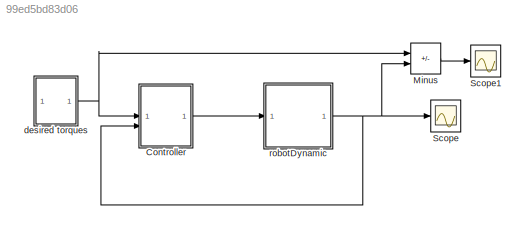
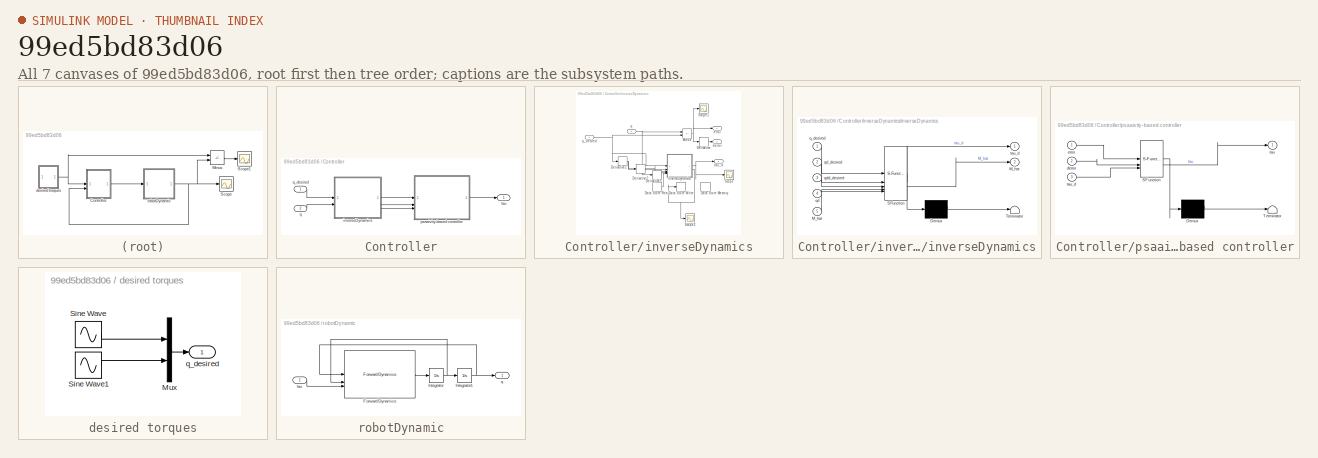
[diagram: thumbnail index - all 7 canvases of the model, root first then tree order]
MODEL slx_99ed5bd83d06
KIND model
CONFIG AbsTol = auto
CONFIG EnableMultiTasking = off
CONFIG FixedStep = 0.01
CONFIG MaxStep = auto
CONFIG MinStep = auto
CONFIG RelTol = 1e-3
CONFIG SampleTimeConstraint = Unconstrained
CONFIG SolverName = ode1
CONFIG StartTime = 0.0
CONFIG StopTime = 10
BLOCK [SubSystem] Controller
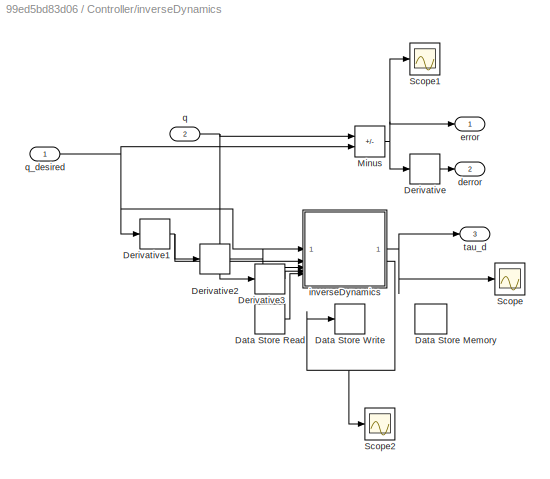
BLOCK [SubSystem] Controller/inverseDynamics
BLOCK [DataStoreMemory] Controller/inverseDynamics/Data Store Memory
  DataStoreName = M_hat
  InitialValue = [1, 0; 0,1;]
  ShowAdditionalParam = off
  WriteAfterWriteMsg = warning
BLOCK [DataStoreRead] Controller/inverseDynamics/Data Store Read
  DataStoreName = M_hat
  IndexOptions = Index vector (dialog)
  Indices = 1
  OutputSizes = 1
BLOCK [DataStoreWrite] Controller/inverseDynamics/Data Store Write
  DataStoreName = M_hat
  IndexOptions = Index vector (dialog)
  Indices = 1
  OutputSizes = 1
BLOCK [Derivative] Controller/inverseDynamics/Derivative
BLOCK [Derivative] Controller/inverseDynamics/Derivative1
BLOCK [Derivative] Controller/inverseDynamics/Derivative2
BLOCK [Derivative] Controller/inverseDynamics/Derivative3
BLOCK [Sum] Controller/inverseDynamics/Minus
  IconShape = rectangular
  Inputs = -+
BLOCK [Scope] Controller/inverseDynamics/Scope
  Floating = off
  NumInputPorts = 1
  ScopeSpecificationString = Simulink.scopes.TimeScopeBlockCfg('CurrentConfiguration', extmgr.ConfigurationSet(extmgr.Configuration('Core','General UI',true),extmgr.Configuration('Core','Source UI',true),extmgr.Configuration('Sources','WiredSimulink',true,'DataLoggingVariableName','ScopeData1'),extmgr.Configuration('Visuals','Time Domain',true,'SerializedDisplays',{struct('MinYLimReal','-290.3394','MaxYLimReal','2368.19128','...<+1541ch>
BLOCK [Scope] Controller/inverseDynamics/Scope1
  Floating = off
  NumInputPorts = 1
  ScopeSpecificationString = Simulink.scopes.TimeScopeBlockCfg('CurrentConfiguration', extmgr.ConfigurationSet(extmgr.Configuration('Core','General UI',true),extmgr.Configuration('Core','Source UI',true),extmgr.Configuration('Sources','WiredSimulink',true,'DataLoggingVariableName','ScopeData1'),extmgr.Configuration('Visuals','Time Domain',true,'SerializedDisplays',{struct('MinYLimReal','-0.25397','MaxYLimReal','1.78466','YLab...<+1465ch>
BLOCK [Scope] Controller/inverseDynamics/Scope2
  Floating = off
  NumInputPorts = 1
  ScopeSpecificationString = Simulink.scopes.TimeScopeBlockCfg('CurrentConfiguration', extmgr.ConfigurationSet(extmgr.Configuration('Core','General UI',true),extmgr.Configuration('Core','Source UI',true),extmgr.Configuration('Sources','WiredSimulink',true,'DataLoggingVariableName','ScopeData2'),extmgr.Configuration('Visuals','Time Domain',true),extmgr.Configuration('Tools','Plot Navigation',true),extmgr.Configuration('Tools',...<+40ch>
BLOCK [Outport] Controller/inverseDynamics/derror
  Port = 2
BLOCK [Outport] Controller/inverseDynamics/error
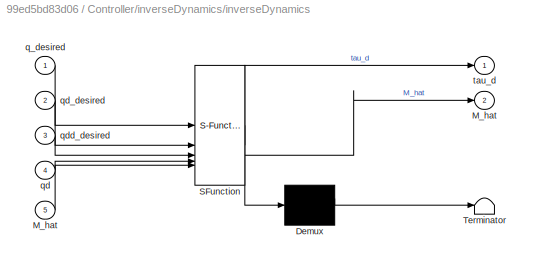
BLOCK [SubSystem] Controller/inverseDynamics/inverseDynamics
  ErrorFcn = Stateflow.Translate.translate
  PermitHierarchicalResolution = ExplicitOnly
  SFBlockType = MATLAB Function
  TreatAsAtomicUnit = on
BLOCK [Demux] Controller/inverseDynamics/inverseDynamics/ Demux 
  Outputs = 1
BLOCK [S-Function] Controller/inverseDynamics/inverseDynamics/ SFunction 
  EnableBusSupport = on
  FunctionName = sf_sfun
  PortCounts = [5 3]
  SFcnIsStateOwnerBlock = off
  SFunctionDeploymentMode = off
  Tag = Stateflow S-Function 3
BLOCK [Terminator] Controller/inverseDynamics/inverseDynamics/ Terminator 
BLOCK [Outport] Controller/inverseDynamics/inverseDynamics/M_hat
  Port = 2
BLOCK [Inport] Controller/inverseDynamics/inverseDynamics/M_hat 
  Port = 5
BLOCK [Inport] Controller/inverseDynamics/inverseDynamics/q_desired
BLOCK [Inport] Controller/inverseDynamics/inverseDynamics/qd
  Port = 4
BLOCK [Inport] Controller/inverseDynamics/inverseDynamics/qd_desired
  Port = 2
BLOCK [Inport] Controller/inverseDynamics/inverseDynamics/qdd_desired
  Port = 3
BLOCK [Outport] Controller/inverseDynamics/inverseDynamics/tau_d
BLOCK [Inport] Controller/inverseDynamics/q
  Port = 2
BLOCK [Inport] Controller/inverseDynamics/q_desired
BLOCK [Outport] Controller/inverseDynamics/tau_d
  Port = 3
BLOCK [SubSystem] Controller/psaaivity-based controller
  ErrorFcn = Stateflow.Translate.translate
  PermitHierarchicalResolution = ExplicitOnly
  SFBlockType = MATLAB Function
  TreatAsAtomicUnit = on
BLOCK [Demux] Controller/psaaivity-based controller/ Demux 
  Outputs = 1
BLOCK [S-Function] Controller/psaaivity-based controller/ SFunction 
  EnableBusSupport = on
  FunctionName = sf_sfun
  PortCounts = [3 2]
  SFcnIsStateOwnerBlock = off
  SFunctionDeploymentMode = off
  Tag = Stateflow S-Function 2
BLOCK [Terminator] Controller/psaaivity-based controller/ Terminator 
BLOCK [Inport] Controller/psaaivity-based controller/derror
  Port = 2
BLOCK [Inport] Controller/psaaivity-based controller/error
BLOCK [Outport] Controller/psaaivity-based controller/tau
BLOCK [Inport] Controller/psaaivity-based controller/tau_d
  Port = 3
BLOCK [Inport] Controller/q
  Port = 2
BLOCK [Inport] Controller/q_desired
BLOCK [Outport] Controller/tau
BLOCK [Sum] Minus
  IconShape = rectangular
  Inputs = +-
BLOCK [Scope] Scope
  Floating = off
  NumInputPorts = 1
  ScopeSpecificationString = Simulink.scopes.TimeScopeBlockCfg('CurrentConfiguration', extmgr.ConfigurationSet(extmgr.Configuration('Core','General UI',true),extmgr.Configuration('Core','Source UI',true),extmgr.Configuration('Sources','WiredSimulink',true),extmgr.Configuration('Visuals','Time Domain',true,'SerializedDisplays',{struct('MinYLimReal','-1.38529','MaxYLimReal','2.93923','YLabelReal','','MinYLimMag','0.00000','MaxY...<+1469ch>
BLOCK [Scope] Scope1
  Floating = off
  NumInputPorts = 1
  ScopeSpecificationString = Simulink.scopes.TimeScopeBlockCfg('CurrentConfiguration', extmgr.ConfigurationSet(extmgr.Configuration('Core','General UI',true),extmgr.Configuration('Core','Source UI',true),extmgr.Configuration('Sources','WiredSimulink',true,'DataLoggingVariableName','ScopeData3'),extmgr.Configuration('Visuals','Time Domain',true,'SerializedDisplays',{struct('MinYLimReal','-0.42368','MaxYLimReal','1.80352','YLab...<+1465ch>
BLOCK [SubSystem] desired torques
BLOCK [Mux] desired torques/Mux
  DisplayOption = bar
  Inputs = 2
BLOCK [Sin] desired torques/Sine Wave
  SampleTime = 0
BLOCK [Sin] desired torques/Sine Wave1
  Bias = pi/2
  SampleTime = 0
BLOCK [Outport] desired torques/q_desired
BLOCK [SubSystem] robotDynamic
BLOCK [Reference] robotDynamic/Forward Dynamics  REF=robotmaniplib/Forward Dynamics
  SourceBlock = robotmaniplib/Forward Dynamics
  SourceType = Forward Dynamics
BLOCK [Integrator] robotDynamic/Integrator
BLOCK [Integrator] robotDynamic/Integrator1
BLOCK [Outport] robotDynamic/q
BLOCK [Inport] robotDynamic/tau
LINE Controller/inverseDynamics/Data Store Read:1 -> Controller/inverseDynamics/inverseDynamics:5
NET Controller/inverseDynamics/Derivative1:1 -> Controller/inverseDynamics/Derivative2:1, Controller/inverseDynamics/inverseDynamics:2
LINE Controller/inverseDynamics/Derivative2:1 -> Controller/inverseDynamics/inverseDynamics:3
LINE Controller/inverseDynamics/Derivative3:1 -> Controller/inverseDynamics/inverseDynamics:4
LINE Controller/inverseDynamics/Derivative:1 -> Controller/inverseDynamics/derror:1
NET Controller/inverseDynamics/Minus:1 -> Controller/inverseDynamics/Derivative:1, Controller/inverseDynamics/Scope1:1, Controller/inverseDynamics/error:1
NET Controller/inverseDynamics/inverseDynamics:1 -> Controller/inverseDynamics/Scope:1, Controller/inverseDynamics/tau_d:1
NET Controller/inverseDynamics/inverseDynamics:2 -> Controller/inverseDynamics/Data Store Write:1, Controller/inverseDynamics/Scope2:1
NET Controller/inverseDynamics/q:1 -> Controller/inverseDynamics/Derivative3:1, Controller/inverseDynamics/Minus:1
NET Controller/inverseDynamics/q_desired:1 -> Controller/inverseDynamics/Derivative1:1, Controller/inverseDynamics/Minus:2, Controller/inverseDynamics/inverseDynamics:1
LINE Controller/inverseDynamics:1 -> Controller/psaaivity-based controller:1
LINE Controller/inverseDynamics:2 -> Controller/psaaivity-based controller:2
LINE Controller/inverseDynamics:3 -> Controller/psaaivity-based controller:3
LINE Controller/psaaivity-based controller:1 -> Controller/tau:1
LINE Controller/q:1 -> Controller/inverseDynamics:2
LINE Controller/q_desired:1 -> Controller/inverseDynamics:1
LINE Controller:1 -> robotDynamic:1
LINE Minus:1 -> Scope1:1
LINE desired torques/Mux:1 -> desired torques/q_desired:1
LINE desired torques/Sine Wave1:1 -> desired torques/Mux:2
LINE desired torques/Sine Wave:1 -> desired torques/Mux:1
NET desired torques:1 -> Controller:1, Minus:1
LINE robotDynamic/Forward Dynamics:1 -> robotDynamic/Integrator:1
NET robotDynamic/Integrator1:1 -> robotDynamic/Forward Dynamics:1, robotDynamic/q:1
NET robotDynamic/Integrator:1 -> robotDynamic/Forward Dynamics:2, robotDynamic/Integrator1:1
LINE robotDynamic/tau:1 -> robotDynamic/Forward Dynamics:3
NET robotDynamic:1 -> Controller:2, Minus:2, Scope:1
note: NET lines group one-source signal fan-out (src -> all destinations, sorted); 1:1 wires keep LINE
CHART Controller/psaaivity-based controller states=1 transitions=1
  STATE_LABEL 'eML_blk_kernel()'
  STATE_LABEL 'SCRIPT:\nfunction tau = controller(error, derror, tau_d)\n\nkp = [300, 0;\n       0, 300];\n\n\nkd = [50, 0;\n        0, 50];\n\ntau = kp * error + kd * derror + tau_d;'
CHART Controller/inverseDynamics/inverseDynamics states=1 transitions=1
  STATE_LABEL 'eML_blk_kernel()'
  STATE_LABEL 'SCRIPT:\nfunction [tau_d, M_hat]  = dynamics(q_desired, qd_desired, qdd_desired, qd, M_hat)\n\n\nI1 = 0.05;\nm1 = 1.5;\nlg1 = 0.2;\nlr1 = lg1 / 2;\n\nI2 = 0.01;\nm2 = 0.5;\nlg2 = 0.2;\nlr2 = lg2 / 2;\n\ngamma = 0.1;\n\ng = 9.8;\n\nM_hat = M_hat + gamma * (qdd_desired .* (qd_desired - qd));\n\nV = [-m2 * lg1 * lr2 * qd_desired(2)^2 * sin(q_desired(2));\n    m2 * lg1 * lr2 * qd_desired(1)^2 * sin(q_desired(2))];\n\nG = [m...<+165ch>'
CHART  states=0 transitions=0
CHART  states=0 transitions=0
